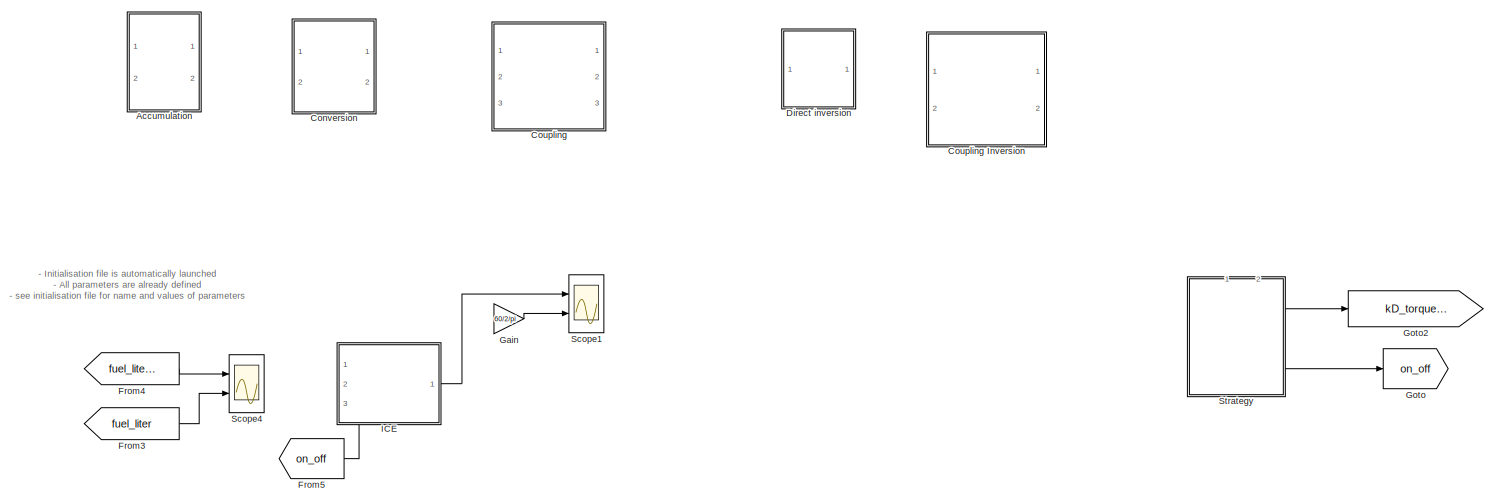
[diagram: root canvas - part 1/2, full width, top band]
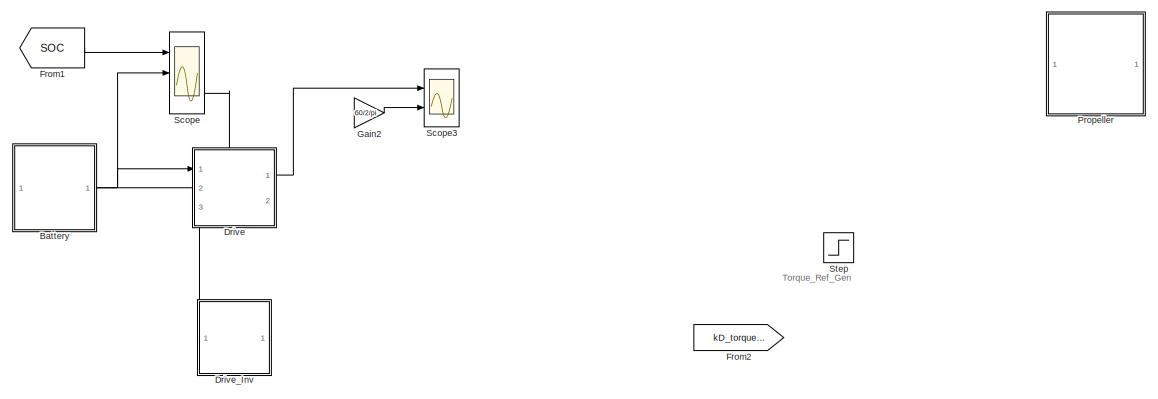
[diagram: root canvas - part 2/2, full width, bottom band]
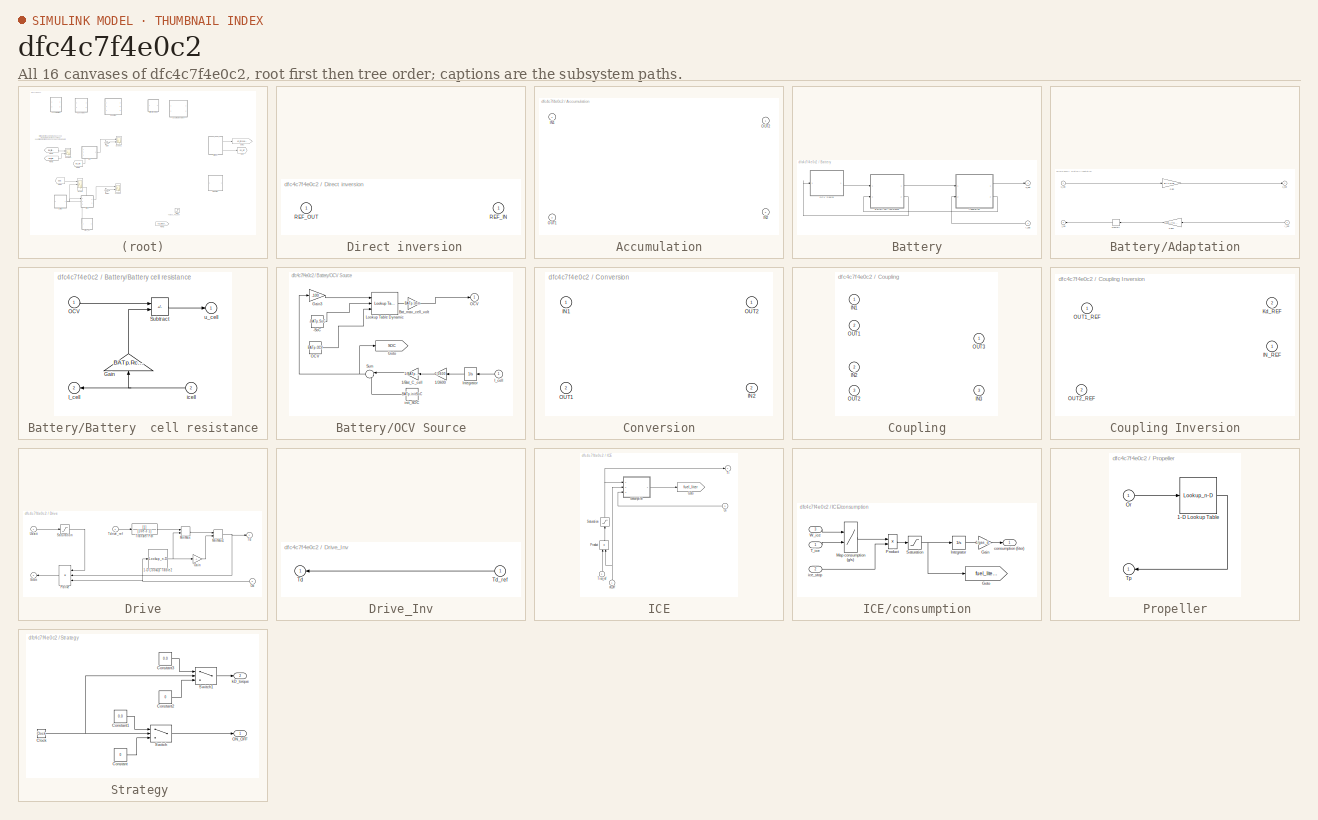
[diagram: thumbnail index - all 16 canvases of the model, root first then tree order]
MODEL slx_dfc4c7f4e0c2
KIND model
CONFIG AbsTol = auto
CONFIG EnableMultiTasking = on
CONFIG FixedStep = 1e-3
CONFIG InitFcn = initialisation
CONFIG MaxStep = 0.1
CONFIG MinStep = auto
CONFIG RelTol = 1e-3
CONFIG SampleTimeConstraint = Unconstrained
CONFIG SolverName = ode45
CONFIG StartTime = 0
CONFIG StopTime = 200
BLOCK [SubSystem]  Direct inversion
  Ports = [1, 1]
BLOCK [Inport]  Direct inversion/REF_IN
  NameLocation = top
BLOCK [Outport]  Direct inversion/REF_OUT
  InitialOutput = 0
  NameLocation = top
  VectorParamsAs1DForOutWhenUnconnected = off
BLOCK [SubSystem] Accumulation
  PortSchema = {"entries":[{"content":{"sides":[{"content":{"connectorIds":["In1","Out2"]},"type":"ConnectorPlacement.EquallySpacedRectSide","uuid":"326d5ef2-2214-4908-8fc2-a754f41fc898"},{"content":{"connectorIds":["Out1","In2"],"side":"RIGHT"},"type":"ConnectorPlacement.EquallySpacedRectSide","uuid":"fc3c24cf-fc6d-45b2-8f10-8df449b5a24f"},{"content":{"connectorIds":[],"side":"TOP"},"type":"ConnectorPlacement.E...<+397ch>
  Ports = [2, 2]
BLOCK [Inport] Accumulation/IN1
BLOCK [Inport] Accumulation/IN2
  Port = 2
BLOCK [Outport] Accumulation/OUT1
  InitialOutput = 0
  Port = 2
  VectorParamsAs1DForOutWhenUnconnected = off
BLOCK [Outport] Accumulation/OUT2
  InitialOutput = 0
  VectorParamsAs1DForOutWhenUnconnected = off
BLOCK [SubSystem] Battery
  NameLocation = top
  PortSchema = {"entries":[{"content":{"sides":[{"content":{"connectorIds":[]},"type":"ConnectorPlacement.EquallySpacedRectSide","uuid":"04262c61-29d9-4e8b-9c1d-2ecf83c8944f"},{"content":{"connectorIds":["Out1","In1"],"side":"RIGHT"},"type":"ConnectorPlacement.EquallySpacedRectSide","uuid":"634c1e8e-7966-43a8-9b77-1c6e134a407e"},{"content":{"connectorIds":[],"side":"TOP"},"type":"ConnectorPlacement.EquallySpaced...<+385ch>
  Ports = [1, 1]
BLOCK [SubSystem] Battery/Adaptation
  AncestorBlock = simulink/REM/EA
  Ports = [2, 2]
BLOCK [Gain] Battery/Adaptation/Gain
  Gain = BATp.ns
BLOCK [Gain] Battery/Adaptation/Gain1
  Gain = 1/BATp.np
  NameLocation = top
BLOCK [Inport] Battery/Adaptation/I_bat
  NameLocation = top
  Port = 2
BLOCK [Memory] Battery/Adaptation/Memory
BLOCK [Outport] Battery/Adaptation/i_cell
  InitialOutput = 0
  NameLocation = top
  Port = 2
BLOCK [Outport] Battery/Adaptation/u_bat
  InitialOutput = 0
BLOCK [Inport] Battery/Adaptation/u_cell
BLOCK [SubSystem] Battery/Battery  cell resistance
  AncestorBlock = simulink/REM/EC Elec
  Ports = [2, 2]
BLOCK [Gain] Battery/Battery  cell resistance/Gain
  Gain = BATp.Rcell
  NameLocation = right
BLOCK [Outport] Battery/Battery  cell resistance/I_cell
  InitialOutput = 0
  NameLocation = top
  Port = 2
BLOCK [Inport] Battery/Battery  cell resistance/OCV
BLOCK [Sum] Battery/Battery  cell resistance/Subtract
  IconShape = rectangular
  Inputs = +-
  Ports = [2, 1]
BLOCK [Inport] Battery/Battery  cell resistance/icell
  NameLocation = top
  Port = 2
BLOCK [Outport] Battery/Battery  cell resistance/u_cell
  InitialOutput = 0
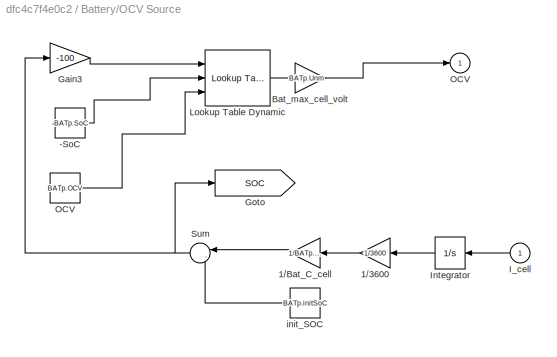
BLOCK [SubSystem] Battery/OCV Source
  AncestorBlock = simulink/REM/SE
  Ports = [1, 1]
BLOCK [Constant] Battery/OCV Source/-SoC
  Value = -BATp.SoC
BLOCK [Gain] Battery/OCV Source/1//3600
  Gain = 1/3600
  NameLocation = top
BLOCK [Gain] Battery/OCV Source/1//Bat_C_cell
  Gain = 1/BATp.Ccell
  NameLocation = top
BLOCK [Gain] Battery/OCV Source/Bat_max_cell_volt
  Gain = BATp.Unm
  NameLocation = top
BLOCK [Gain] Battery/OCV Source/Gain3
  Gain = -100
BLOCK [Goto] Battery/OCV Source/Goto
  GotoTag = SOC
  TagVisibility = global
BLOCK [Inport] Battery/OCV Source/I_cell 
  NameLocation = top
BLOCK [Integrator] Battery/OCV Source/Integrator
  NameLocation = top
  Ports = [1, 1]
BLOCK [Reference] Battery/OCV Source/Lookup Table Dynamic  REF=simulink/Lookup
Tables/Lookup
Table
Dynamic
  Ports = [3, 1]
  SourceBlock = simulink/Lookup\nTables/Lookup\nTable\nDynamic
  SourceType = Lookup Table Dynamic
BLOCK [Outport] Battery/OCV Source/OCV
  InitialOutput = 0
BLOCK [Constant] Battery/OCV Source/OCV 
  Value = BATp.OCV
BLOCK [Sum] Battery/OCV Source/Sum
  Inputs = |-+
  NameLocation = top
  Ports = [2, 1]
BLOCK [Constant] Battery/OCV Source/init_SOC
  NameLocation = top
  Value = BATp.initSoC
BLOCK [Inport] Battery/i_bat
  NameLocation = top
BLOCK [Outport] Battery/u_bat
  InitialOutput = 0
  NameLocation = top
BLOCK [SubSystem] Conversion
  PortSchema = {"entries":[{"content":{"sides":[{"content":{"connectorIds":["In1","Out2"]},"type":"ConnectorPlacement.EquallySpacedRectSide","uuid":"326d5ef2-2214-4908-8fc2-a754f41fc898"},{"content":{"connectorIds":["Out1","In2"],"side":"RIGHT"},"type":"ConnectorPlacement.EquallySpacedRectSide","uuid":"fc3c24cf-fc6d-45b2-8f10-8df449b5a24f"},{"content":{"connectorIds":[],"side":"TOP"},"type":"ConnectorPlacement.E...<+397ch>
  Ports = [2, 2]
BLOCK [Inport] Conversion/IN1
BLOCK [Inport] Conversion/IN2
  Port = 2
BLOCK [Outport] Conversion/OUT1
  InitialOutput = 0
  Port = 2
  VectorParamsAs1DForOutWhenUnconnected = off
BLOCK [Outport] Conversion/OUT2
  InitialOutput = 0
  VectorParamsAs1DForOutWhenUnconnected = off
BLOCK [SubSystem] Coupling
  PortSchema = {"entries":[{"content":{"sides":[{"content":{"connectorIds":["In1","Out2","In2","Out3"]},"type":"ConnectorPlacement.EquallySpacedRectSide","uuid":"df93f744-6d0c-4190-9dc7-b242802e84ae"},{"content":{"connectorIds":["Out1","In3"],"side":"RIGHT"},"type":"ConnectorPlacement.EquallySpacedRectSide","uuid":"ba8d09c4-cf9c-45e8-936e-e5f3eb39eb38"},{"content":{"connectorIds":[],"side":"TOP"},"type":"Connect...<+410ch>
  Ports = [3, 3]
BLOCK [SubSystem] Coupling Inversion
  PortSchema = {"entries":[{"content":{"sides":[{"content":{"connectorIds":["In1"]},"type":"ConnectorPlacement.EquallySpacedRectSide","uuid":"326d5ef2-2214-4908-8fc2-a754f41fc898"},{"content":{"connectorIds":["Out1","Out2"],"side":"RIGHT"},"type":"ConnectorPlacement.EquallySpacedRectSide","uuid":"fc3c24cf-fc6d-45b2-8f10-8df449b5a24f"},{"content":{"connectorIds":[],"side":"TOP"},"type":"ConnectorPlacement.Equally...<+540ch>
  Ports = [2, 2]
BLOCK [Inport] Coupling Inversion/IN_REF
BLOCK [Inport] Coupling Inversion/Kd_REF
  Port = 2
BLOCK [Outport] Coupling Inversion/OUT1_REF
  InitialOutput = 0
  VectorParamsAs1DForOutWhenUnconnected = off
BLOCK [Outport] Coupling Inversion/OUT2_REF
  InitialOutput = 0
  Port = 2
  VectorParamsAs1DForOutWhenUnconnected = off
BLOCK [Inport] Coupling/IN1
BLOCK [Inport] Coupling/IN2
  NameLocation = top
  Port = 2
BLOCK [Inport] Coupling/IN3
  Port = 3
BLOCK [Outport] Coupling/OUT1
  InitialOutput = 0
  NameLocation = top
  Port = 2
  VectorParamsAs1DForOutWhenUnconnected = off
BLOCK [Outport] Coupling/OUT2
  InitialOutput = 0
  Port = 3
  VectorParamsAs1DForOutWhenUnconnected = off
BLOCK [Outport] Coupling/OUT3
  InitialOutput = 0
  VectorParamsAs1DForOutWhenUnconnected = off
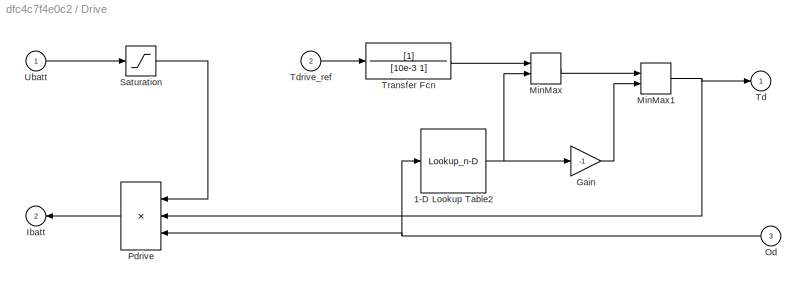
BLOCK [SubSystem] Drive
  PortSchema = {"entries":[{"content":{"sides":[{"content":{"connectorIds":["In1","Out2"]},"type":"ConnectorPlacement.EquallySpacedRectSide","uuid":"0136f92c-2474-4b15-9e94-a810dbb8344b"},{"content":{"connectorIds":["Out1","In3"],"side":"RIGHT"},"type":"ConnectorPlacement.EquallySpacedRectSide","uuid":"03ae7c30-e7d0-47d2-befe-60de862c4bfe"},{"content":{"connectorIds":[],"side":"TOP"},"type":"ConnectorPlacement.E...<+546ch>
  Ports = [3, 2]
BLOCK [Lookup_n-D] Drive/1-D Lookup Table2
  BreakpointsForDimension1 = EMp.Odrive
  InputPortMap = u0
  InternalRulePriority = Speed
  NumberOfTableDimensions = 1
  Ports = [1, 1]
  RndMeth = Simplest
  Table = EMp.Tmax
BLOCK [Gain] Drive/Gain
  Gain = -1
BLOCK [Outport] Drive/Ibatt
  InitialOutput = 0
  Port = 2
  VectorParamsAs1DForOutWhenUnconnected = off
BLOCK [MinMax] Drive/MinMax
  Inputs = 2
  Ports = [2, 1]
BLOCK [MinMax] Drive/MinMax1
  Function = max
  Inputs = 2
  Ports = [2, 1]
BLOCK [Inport] Drive/Od
  Port = 3
BLOCK [Product] Drive/Pdrive
  Inputs = /**
  NameLocation = top
  Ports = [3, 1]
BLOCK [Saturate] Drive/Saturation
  LowerLimit = 10.0
  UpperLimit = Inf
BLOCK [Outport] Drive/Td
  InitialOutput = 0
  VectorParamsAs1DForOutWhenUnconnected = off
BLOCK [Inport] Drive/Tdrive_ref
  NameLocation = top
  Port = 2
BLOCK [TransferFcn] Drive/Transfer Fcn
  Denominator = [10e-3 1]
BLOCK [Inport] Drive/Ubatt
BLOCK [SubSystem] Drive_Inv
  PortSchema = {"entries":[{"content":{"sides":[{"content":{"connectorIds":["In1"]},"type":"ConnectorPlacement.EquallySpacedRectSide","uuid":"04262c61-29d9-4e8b-9c1d-2ecf83c8944f"},{"content":{"connectorIds":[],"side":"RIGHT"},"type":"ConnectorPlacement.EquallySpacedRectSide","uuid":"634c1e8e-7966-43a8-9b77-1c6e134a407e"},{"content":{"connectorIds":["Out1"],"side":"TOP"},"type":"ConnectorPlacement.EquallySpacedR...<+384ch>
  Ports = [1, 1]
BLOCK [Outport] Drive_Inv/Td
  InitialOutput = 0
  VectorParamsAs1DForOutWhenUnconnected = off
BLOCK [Inport] Drive_Inv/Td_ref
  NameLocation = top
BLOCK [From] From1
  GotoTag = SOC
  TagVisibility = global
BLOCK [From] From2
  GotoTag = kD_torque_ref
  NameLocation = top
  TagVisibility = global
BLOCK [From] From3
  GotoTag = fuel_liter
  TagVisibility = global
BLOCK [From] From4
  GotoTag = fuel_liter_gps
  TagVisibility = global
BLOCK [From] From5
  GotoTag = on_off
  TagVisibility = global
BLOCK [Gain] Gain
  Gain = 60/2/pi
BLOCK [Gain] Gain2
  Gain = 60/2/pi
BLOCK [Goto] Goto
  GotoTag = on_off
  TagVisibility = global
BLOCK [Goto] Goto2
  GotoTag = kD_torque_ref
  TagVisibility = global
BLOCK [SubSystem] ICE
  PortSchema = {"entries":[{"content":{"sides":[{"content":{"connectorIds":[]},"type":"ConnectorPlacement.EquallySpacedRectSide","uuid":"c473ca53-b8b5-4bc1-98f4-3eae767e6b93"},{"content":{"connectorIds":["Out1","In3"],"side":"RIGHT"},"type":"ConnectorPlacement.EquallySpacedRectSide","uuid":"3221b5d7-f1e1-4c42-88b5-7a99972d45da"},{"content":{"connectorIds":[],"side":"TOP"},"type":"ConnectorPlacement.EquallySpaced...<+540ch>
  Ports = [3, 1]
BLOCK [Goto] ICE/Goto
  GotoTag = fuel_liter
  TagVisibility = global
BLOCK [Inport] ICE/Oi
  Port = 3
BLOCK [Product] ICE/Product
  NameLocation = right
  Ports = [2, 1]
  RndMeth = Zero
BLOCK [Saturate] ICE/Saturation
  LowerLimit = 0
  NameLocation = right
  UpperLimit = 102
BLOCK [Outport] ICE/Ti
  InitialOutput = 0
  NameLocation = top
  VectorParamsAs1DForOutWhenUnconnected = off
BLOCK [Inport] ICE/Tice_ref
  NameLocation = left
  Port = 2
BLOCK [SubSystem] ICE/consumption
  Ports = [3, 1]
BLOCK [Gain] ICE/consumption/Gain
  Gain = 1/gas_dens
  OutDataTypeStr = Inherit: Same as input
  ParamDataTypeStr = Inherit: Same as input
  SaturateOnIntegerOverflow = on
BLOCK [Goto] ICE/consumption/Goto
  GotoTag = fuel_liter_gps
  TagVisibility = global
BLOCK [Integrator] ICE/consumption/Integrator
  LowerSaturationLimit = 0
  Ports = [1, 1]
BLOCK [Lookup2D] ICE/consumption/Map consumption (g//s)
  ColumnIndex = ICE.Torque
  RowIndex = ICE.Omega
  Table = ICE.Fuel_consumption
BLOCK [Product] ICE/consumption/Product
  Ports = [2, 1]
  RndMeth = Zero
BLOCK [Saturate] ICE/consumption/Saturation
  LowerLimit = 0
  UpperLimit = Inf
BLOCK [Inport] ICE/consumption/T_ice
BLOCK [Inport] ICE/consumption/W_ice
  NameLocation = top
  Port = 3
BLOCK [Outport] ICE/consumption/consumption (liter)
  InitialOutput = 0
  VectorParamsAs1DForOutWhenUnconnected = off
BLOCK [Inport] ICE/consumption/ice_stop
  Port = 2
BLOCK [Inport] ICE/on_off
  NameLocation = right
BLOCK [SubSystem] Propeller
  PortSchema = {"entries":[{"content":{"sides":[{"content":{"connectorIds":["In1","Out1"]},"type":"ConnectorPlacement.EquallySpacedRectSide","uuid":"04262c61-29d9-4e8b-9c1d-2ecf83c8944f"},{"content":{"connectorIds":[],"side":"RIGHT"},"type":"ConnectorPlacement.EquallySpacedRectSide","uuid":"634c1e8e-7966-43a8-9b77-1c6e134a407e"},{"content":{"connectorIds":[],"side":"TOP"},"type":"ConnectorPlacement.EquallySpaced...<+385ch>
  Ports = [1, 1]
BLOCK [Lookup_n-D] Propeller/1-D Lookup Table
  BreakpointsForDimension1 = Oprop
  InputPortMap = u0
  InternalRulePriority = Speed
  NumberOfTableDimensions = 1
  Ports = [1, 1]
  RndMeth = Simplest
  Table = Tprop
BLOCK [Inport] Propeller/Or
BLOCK [Outport] Propeller/Tp
  InitialOutput = 0
  NameLocation = top
  VectorParamsAs1DForOutWhenUnconnected = off
BLOCK [Scope] Scope
  Floating = off
  NumInputPorts = 3
  Ports = [3]
  ScopeSpecificationString = Simulink.scopes.TimeScopeBlockCfg('CurrentConfiguration', extmgr.ConfigurationSet(extmgr.Configuration('Core','General UI',true),extmgr.Configuration('Core','Source UI',true),extmgr.Configuration('Sources','WiredSimulink',true),extmgr.Configuration('Visuals','Time Domain',true,'SerializedDisplays',{struct('MinYLimReal','0.89716','MaxYLimReal','0.9006','YLabelReal','','MinYLimMag','0.89247','MaxYLi...<+2672ch>
BLOCK [Scope] Scope1
  Floating = off
  NumInputPorts = 2
  Ports = [2]
  ScopeSpecificationString = Simulink.scopes.TimeScopeBlockCfg('CurrentConfiguration', extmgr.ConfigurationSet(extmgr.Configuration('Core','General UI',true),extmgr.Configuration('Core','Source UI',true),extmgr.Configuration('Sources','WiredSimulink',true,'DataLoggingVariableName','ScopeData1'),extmgr.Configuration('Visuals','Time Domain',true,'SerializedDisplays',{struct('MinYLimReal','-9.00000','MaxYLimReal','81.00000','YLa...<+2037ch>
BLOCK [Scope] Scope3
  Floating = off
  NumInputPorts = 2
  Ports = [2]
  ScopeSpecificationString = Simulink.scopes.TimeScopeBlockCfg('CurrentConfiguration', extmgr.ConfigurationSet(extmgr.Configuration('Core','General UI',true),extmgr.Configuration('Core','Source UI',true),extmgr.Configuration('Sources','WiredSimulink',true,'DataLoggingVariableName','ScopeData1'),extmgr.Configuration('Visuals','Time Domain',true,'SerializedDisplays',{struct('MinYLimReal','-14.00192','MaxYLimReal','46.04942','YL...<+2025ch>
BLOCK [Scope] Scope4
  Floating = off
  NumInputPorts = 2
  Ports = [2]
  ScopeSpecificationString = Simulink.scopes.TimeScopeBlockCfg('CurrentConfiguration', extmgr.ConfigurationSet(extmgr.Configuration('Core','General UI',true),extmgr.Configuration('Core','Source UI',true),extmgr.Configuration('Sources','WiredSimulink',true,'DataLoggingVariableName','ScopeData1'),extmgr.Configuration('Visuals','Time Domain',true,'SerializedDisplays',{struct('MinYLimReal','-0.13802','MaxYLimReal','1.24215','YLab...<+2001ch>
BLOCK [Step] Step
  After = 80
  NameLocation = top
  SampleTime = 0
  Time = 10
BLOCK [SubSystem] Strategy 
  NameLocation = left
  PortSchema = {"entries":[{"content":{"sides":[{"content":{"connectorIds":[]},"type":"ConnectorPlacement.EquallySpacedRectSide","uuid":"63c31aab-ea26-4764-93d2-efdab5f0aed9"},{"content":{"connectorIds":[],"side":"RIGHT"},"type":"ConnectorPlacement.EquallySpacedRectSide","uuid":"5340923b-eca1-4381-b70a-945b4f8fbb4d"},{"content":{"connectorIds":[],"side":"TOP"},"type":"ConnectorPlacement.EquallySpacedRectSide","u...<+386ch>
  Ports = [0, 2]
BLOCK [Clock] Strategy /Clock
BLOCK [Constant] Strategy /Constant
  Value = 0
BLOCK [Constant] Strategy /Constant1
  Value = 0.0
BLOCK [Constant] Strategy /Constant2
  Value = 0
BLOCK [Constant] Strategy /Constant3
  Value = 0.0
BLOCK [Outport] Strategy /ON_OFF
BLOCK [Switch] Strategy /Switch
  InputSameDT = off
  SaturateOnIntegerOverflow = off
  Threshold = 30
BLOCK [Switch] Strategy /Switch1
  InputSameDT = off
  SaturateOnIntegerOverflow = off
  Threshold = 40
BLOCK [Outport] Strategy /kD_torque
  Port = 2
ANNOTATION (root): - Initialisation file is automatically launched - All parameters are already defined - see initialisation file for name and values of parameters
ANNOTATION (root): Torque_Ref_Gen
LINE Battery/Adaptation:1 -> Battery/u_bat:1
LINE Battery/Adaptation:2 -> Battery/Battery  cell resistance:2
LINE Battery/Battery  cell resistance:1 -> Battery/Adaptation:1
LINE Battery/Battery  cell resistance:2 -> Battery/OCV Source:1
LINE Battery/OCV Source:1 -> Battery/Battery  cell resistance:1
LINE Battery/i_bat:1 -> Battery/Adaptation:2
NET Battery:1 -> Drive:1, Scope:2
NET Drive/1-D Lookup Table2:1 -> Drive/Gain:1, Drive/MinMax:2
LINE Drive/Gain:1 -> Drive/MinMax1:2
NET Drive/MinMax1:1 -> Drive/Pdrive:2, Drive/Td:1
LINE Drive/MinMax:1 -> Drive/MinMax1:1
NET Drive/Od:1 -> Drive/1-D Lookup Table2:1, Drive/Pdrive:3
LINE Drive/Pdrive:1 -> Drive/Ibatt:1
LINE Drive/Saturation:1 -> Drive/Pdrive:1
LINE Drive/Tdrive_ref:1 -> Drive/Transfer Fcn:1
LINE Drive/Transfer Fcn:1 -> Drive/MinMax:1
LINE Drive/Ubatt:1 -> Drive/Saturation:1
LINE Drive:1 -> Scope3:1
NET Drive:2 -> Battery:1, Scope:3
LINE Drive_Inv/Td_ref:1 -> Drive_Inv/Td:1
LINE Drive_Inv:1 -> Drive:2
LINE From1:1 -> Scope:1
LINE From3:1 -> Scope4:2
LINE From4:1 -> Scope4:1
LINE From5:1 -> ICE:1
LINE Gain2:1 -> Scope3:2
LINE Gain:1 -> Scope1:2
LINE ICE/Oi:1 -> ICE/consumption:3
LINE ICE/Product:1 -> ICE/Saturation:1
NET ICE/Saturation:1 -> ICE/Ti:1, ICE/consumption:1
LINE ICE/Tice_ref:1 -> ICE/Product:1
LINE ICE/consumption/Gain:1 -> ICE/consumption/consumption (liter):1
LINE ICE/consumption/Integrator:1 -> ICE/consumption/Gain:1
LINE ICE/consumption/Map consumption (g//s):1 -> ICE/consumption/Product:1
LINE ICE/consumption/Product:1 -> ICE/consumption/Saturation:1
NET ICE/consumption/Saturation:1 -> ICE/consumption/Goto:1, ICE/consumption/Integrator:1
LINE ICE/consumption/T_ice:1 -> ICE/consumption/Map consumption (g//s):2
LINE ICE/consumption/W_ice:1 -> ICE/consumption/Map consumption (g//s):1
LINE ICE/consumption/ice_stop:1 -> ICE/consumption/Product:2
LINE ICE/consumption:1 -> ICE/Goto:1
NET ICE/on_off:1 -> ICE/Product:2, ICE/consumption:2
LINE ICE:1 -> Scope1:1
LINE Propeller/1-D Lookup Table:1 -> Propeller/Tp:1
LINE Propeller/Or:1 -> Propeller/1-D Lookup Table:1
NET Strategy /Clock:1 -> Strategy /Switch1:2, Strategy /Switch:2
LINE Strategy /Constant1:1 -> Strategy /Switch:1
LINE Strategy /Constant2:1 -> Strategy /Switch1:3
LINE Strategy /Constant3:1 -> Strategy /Switch1:1
LINE Strategy /Constant:1 -> Strategy /Switch:3
LINE Strategy /Switch1:1 -> Strategy /kD_torque:1
LINE Strategy /Switch:1 -> Strategy /ON_OFF:1
LINE Strategy :1 -> Goto:1
LINE Strategy :2 -> Goto2:1
note: NET lines group one-source signal fan-out (src -> all destinations, sorted); 1:1 wires keep LINE
